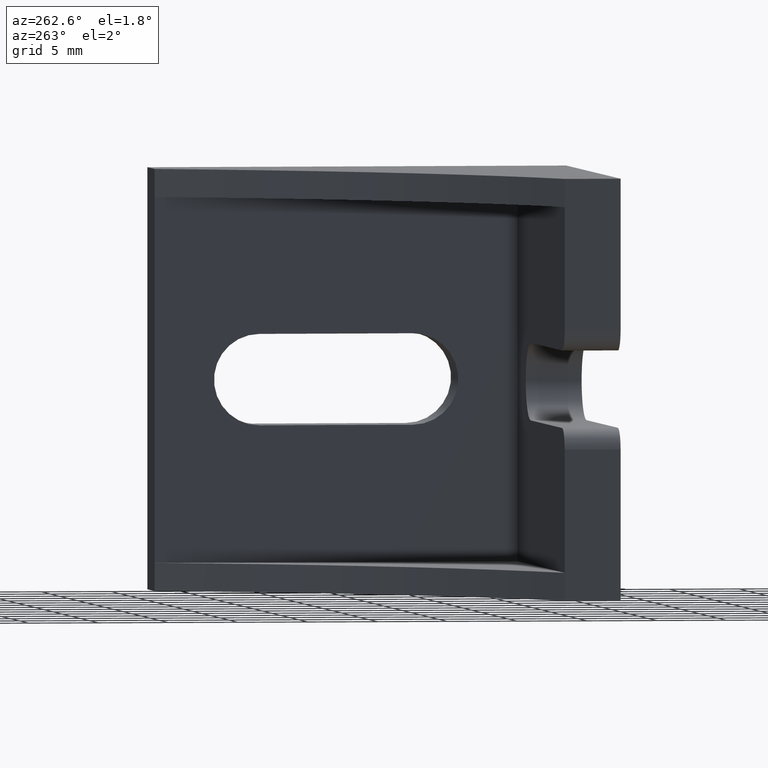
[diagram: clean part render]
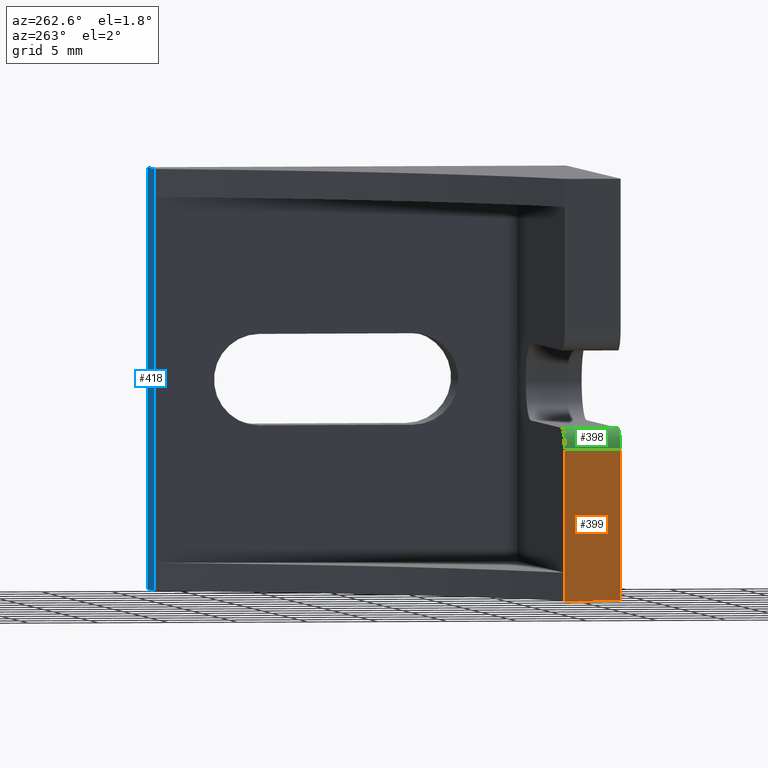
[diagram: same view with three faces highlighted in distinct colors, each labeled with its STEP entity id]
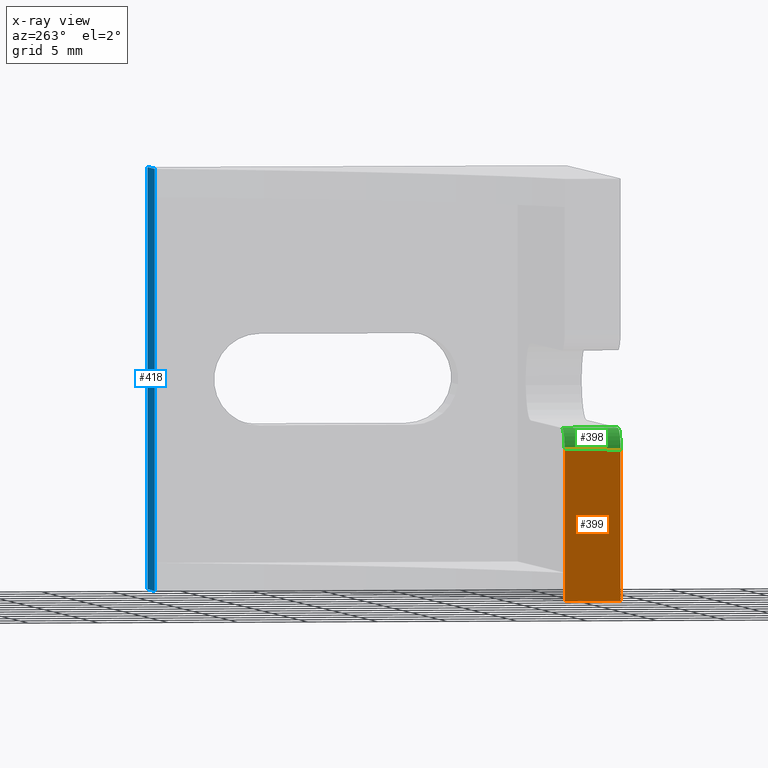
[diagram: x-ray of the same camera — body ghosted, the three highlighted faces saturated]
A machine part, auxiliary view with three faces highlighted in distinct colors.
The next image is the same camera in x-ray (body ghosted, the three faces saturated) — at least one of them is partly hidden behind the body in this view.
Their STEP definitions:

[orange] entity #399 — the highlighted planar face has unit normal (-1, 0, 0).
#18=PLANE('',#426);
#34=FACE_OUTER_BOUND('',#54,.T.);
#54=EDGE_LOOP('',(#279,#280,#281,#282,#283));
#77=LINE('',#583,#121);
#79=LINE('',#589,#123);
#80=LINE('',#591,#124);
#81=LINE('',#593,#125);
#82=LINE('',#594,#126);
#121=VECTOR('',#465,4.00205758755086);
#123=VECTOR('',#471,8.75);
#124=VECTOR('',#472,2.00000000000001);
#125=VECTOR('',#473,4.00205758755086);
#126=VECTOR('',#474,10.75);
#180=VERTEX_POINT('',#580);
#181=VERTEX_POINT('',#582);
#183=VERTEX_POINT('',#588);
#184=VERTEX_POINT('',#590);
#185=VERTEX_POINT('',#592);
#218=EDGE_CURVE('',#180,#181,#77,.T.);
#221=EDGE_CURVE('',#180,#183,#79,.T.);
#222=EDGE_CURVE('',#183,#184,#80,.T.);
#223=EDGE_CURVE('',#185,#184,#81,.T.);
#224=EDGE_CURVE('',#185,#181,#82,.T.);
#279=ORIENTED_EDGE('',*,*,#218,.F.);
#280=ORIENTED_EDGE('',*,*,#221,.T.);
#281=ORIENTED_EDGE('',*,*,#222,.T.);
#282=ORIENTED_EDGE('',*,*,#223,.F.);
#283=ORIENTED_EDGE('',*,*,#224,.T.);
#399=ADVANCED_FACE('',(#34),#18,.T.);
#426=AXIS2_PLACEMENT_3D('',#587,#469,#470);
#465=DIRECTION('',(0.,-1.,0.));
#469=DIRECTION('center_axis',(-1.,0.,0.));
#470=DIRECTION('ref_axis',(0.,-1.,0.));
#471=DIRECTION('',(0.,0.,-1.));
#472=DIRECTION('',(0.,0.,-1.));
#473=DIRECTION('',(0.,1.,0.));
#474=DIRECTION('',(0.,0.,1.));
#580=CARTESIAN_POINT('',(-15.,-10.9979424124491,10.75));
#582=CARTESIAN_POINT('',(-15.,-15.,10.75));
#583=CARTESIAN_POINT('',(-15.,0.,10.75));
#587=CARTESIAN_POINT('Origin',(-15.,15.,0.));
#588=CARTESIAN_POINT('',(-15.,-10.9979424124491,2.00000000000001));
#589=CARTESIAN_POINT('',(-15.,-10.9979424124491,30.));
#590=CARTESIAN_POINT('',(-15.,-10.9979424124491,0.));
#591=CARTESIAN_POINT('',(-15.,-10.9979424124491,30.));
#592=CARTESIAN_POINT('',(-15.,-15.,0.));
#593=CARTESIAN_POINT('',(-15.,-15.,0.));
#594=CARTESIAN_POINT('',(-15.,-15.,0.));

[blue] entity #418 — the highlighted planar face has unit normal (0, 1, 0).
#31=PLANE('',#457);
#51=FACE_OUTER_BOUND('',#75,.T.);
#75=EDGE_LOOP('',(#378,#379,#380,#381,#382,#383,#384,#385));
#106=LINE('',#660,#150);
#108=LINE('',#666,#152);
#110=LINE('',#670,#154);
#111=LINE('',#673,#155);
#112=LINE('',#678,#156);
#113=LINE('',#681,#157);
#116=LINE('',#687,#160);
#120=LINE('',#694,#164);
#150=VECTOR('',#536,0.00205758755085661);
#152=VECTOR('',#542,0.00205758755085661);
#154=VECTOR('',#548,26.);
#155=VECTOR('',#551,2.);
#156=VECTOR('',#558,2.);
#157=VECTOR('',#561,4.00205758755086);
#160=VECTOR('',#566,30.);
#164=VECTOR('',#574,4.00205758755086);
#207=VERTEX_POINT('',#658);
#208=VERTEX_POINT('',#659);
#209=VERTEX_POINT('',#664);
#210=VERTEX_POINT('',#665);
#211=VERTEX_POINT('',#672);
#212=VERTEX_POINT('',#676);
#213=VERTEX_POINT('',#680);
#215=VERTEX_POINT('',#686);
#256=EDGE_CURVE('',#207,#208,#106,.T.);
#259=EDGE_CURVE('',#209,#210,#108,.T.);
#262=EDGE_CURVE('',#210,#207,#110,.T.);
#263=EDGE_CURVE('',#211,#209,#111,.T.);
#266=EDGE_CURVE('',#208,#212,#112,.T.);
#267=EDGE_CURVE('',#211,#213,#113,.T.);
#270=EDGE_CURVE('',#213,#215,#116,.T.);
#274=EDGE_CURVE('',#215,#212,#120,.T.);
#378=ORIENTED_EDGE('',*,*,#256,.T.);
#379=ORIENTED_EDGE('',*,*,#266,.T.);
#380=ORIENTED_EDGE('',*,*,#274,.F.);
#381=ORIENTED_EDGE('',*,*,#270,.F.);
#382=ORIENTED_EDGE('',*,*,#267,.F.);
#383=ORIENTED_EDGE('',*,*,#263,.T.);
#384=ORIENTED_EDGE('',*,*,#259,.T.);
#385=ORIENTED_EDGE('',*,*,#262,.T.);
#418=ADVANCED_FACE('',(#51),#31,.T.);
#457=AXIS2_PLACEMENT_3D('',#693,#572,#573);
#536=DIRECTION('',(-1.,0.,0.));
#542=DIRECTION('',(1.,0.,0.));
#548=DIRECTION('',(0.,0.,1.));
#551=DIRECTION('',(0.,0.,1.));
#558=DIRECTION('',(0.,0.,1.));
#561=DIRECTION('',(1.,0.,0.));
#566=DIRECTION('',(0.,0.,1.));
#572=DIRECTION('center_axis',(0.,1.,0.));
#573=DIRECTION('ref_axis',(-1.,0.,0.));
#574=DIRECTION('',(-1.,0.,0.));
#658=CARTESIAN_POINT('',(11.,15.,28.));
#659=CARTESIAN_POINT('',(10.9979424124491,15.,28.));
#660=CARTESIAN_POINT('',(0.,15.,28.));
#664=CARTESIAN_POINT('',(10.9979424124491,15.,2.));
#665=CARTESIAN_POINT('',(11.,15.,2.));
#666=CARTESIAN_POINT('',(0.,15.,2.));
#670=CARTESIAN_POINT('',(11.,15.,7.5));
#672=CARTESIAN_POINT('',(10.9979424124491,15.,0.));
#673=CARTESIAN_POINT('',(10.9979424124491,15.,30.));
#676=CARTESIAN_POINT('',(10.9979424124491,15.,30.));
#678=CARTESIAN_POINT('',(10.9979424124491,15.,30.));
#680=CARTESIAN_POINT('',(15.,15.,0.));
#681=CARTESIAN_POINT('',(-15.,15.,0.));
#686=CARTESIAN_POINT('',(15.,15.,30.));
#687=CARTESIAN_POINT('',(15.,15.,0.));
#693=CARTESIAN_POINT('Origin',(15.,15.,0.));
#694=CARTESIAN_POINT('',(-15.,15.,30.));

[green] entity #398 — the highlighted cylindrical surface (edge-blend (fillet) strip) has radius 1.5 mm, axis along (0, 1, 0).
#33=FACE_OUTER_BOUND('',#53,.T.);
#53=EDGE_LOOP('',(#275,#276,#277,#278));
#77=LINE('',#583,#121);
#78=LINE('',#586,#122);
#121=VECTOR('',#465,4.00205758755086);
#122=VECTOR('',#468,4.00205758755086);
#165=CIRCLE('',#424,1.5);
#166=CIRCLE('',#425,1.5);
#179=VERTEX_POINT('',#579);
#180=VERTEX_POINT('',#580);
#181=VERTEX_POINT('',#582);
#182=VERTEX_POINT('',#584);
#217=EDGE_CURVE('',#179,#180,#165,.T.);
#218=EDGE_CURVE('',#180,#181,#77,.T.);
#219=EDGE_CURVE('',#181,#182,#166,.T.);
#220=EDGE_CURVE('',#182,#179,#78,.T.);
#275=ORIENTED_EDGE('',*,*,#217,.T.);
#276=ORIENTED_EDGE('',*,*,#218,.T.);
#277=ORIENTED_EDGE('',*,*,#219,.T.);
#278=ORIENTED_EDGE('',*,*,#220,.T.);
#391=CYLINDRICAL_SURFACE('',#423,1.5);
#398=ADVANCED_FACE('',(#33),#391,.T.);
#423=AXIS2_PLACEMENT_3D('',#578,#461,#462);
#424=AXIS2_PLACEMENT_3D('',#581,#463,#464);
#425=AXIS2_PLACEMENT_3D('',#585,#466,#467);
#461=DIRECTION('center_axis',(0.,1.,0.));
#462=DIRECTION('ref_axis',(-0.707106781186547,0.,0.707106781186547));
#463=DIRECTION('center_axis',(0.,-1.,0.));
#464=DIRECTION('ref_axis',(-0.707106781186547,0.,0.707106781186547));
#465=DIRECTION('',(0.,-1.,0.));
#466=DIRECTION('center_axis',(0.,1.,0.));
#467=DIRECTION('ref_axis',(-0.707106781186547,0.,0.707106781186547));
#468=DIRECTION('',(0.,1.,0.));
#578=CARTESIAN_POINT('Origin',(-13.5,0.,10.75));
#579=CARTESIAN_POINT('',(-13.5,-10.9979424124491,12.25));
#580=CARTESIAN_POINT('',(-15.,-10.9979424124491,10.75));
#581=CARTESIAN_POINT('Origin',(-13.5,-10.9979424124491,10.75));
#582=CARTESIAN_POINT('',(-15.,-15.,10.75));
#583=CARTESIAN_POINT('',(-15.,0.,10.75));
#584=CARTESIAN_POINT('',(-13.5,-15.,12.25));
#585=CARTESIAN_POINT('Origin',(-13.5,-15.,10.75));
#586=CARTESIAN_POINT('',(-13.5,0.,12.25));